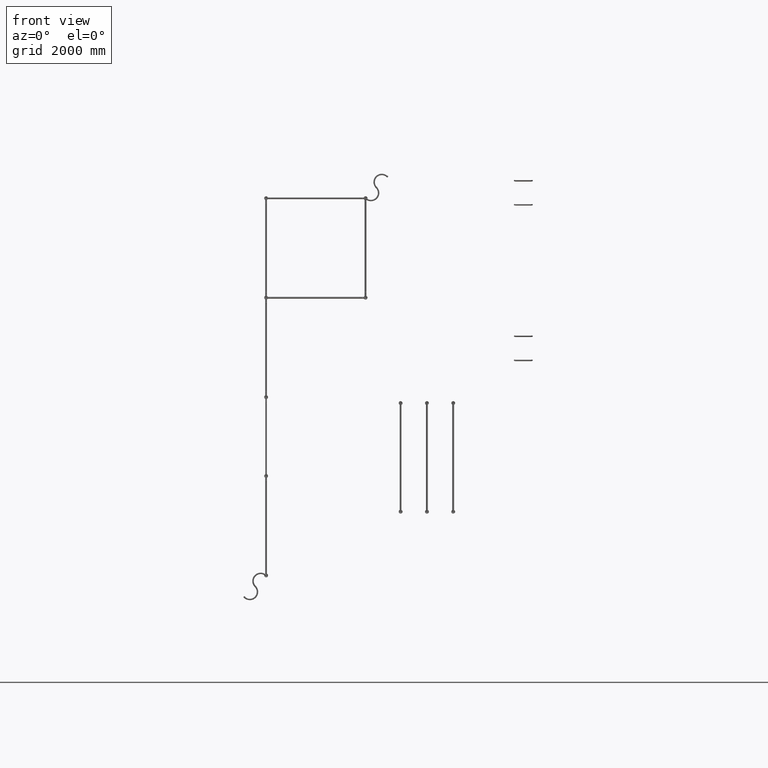
[diagram: clean part render]
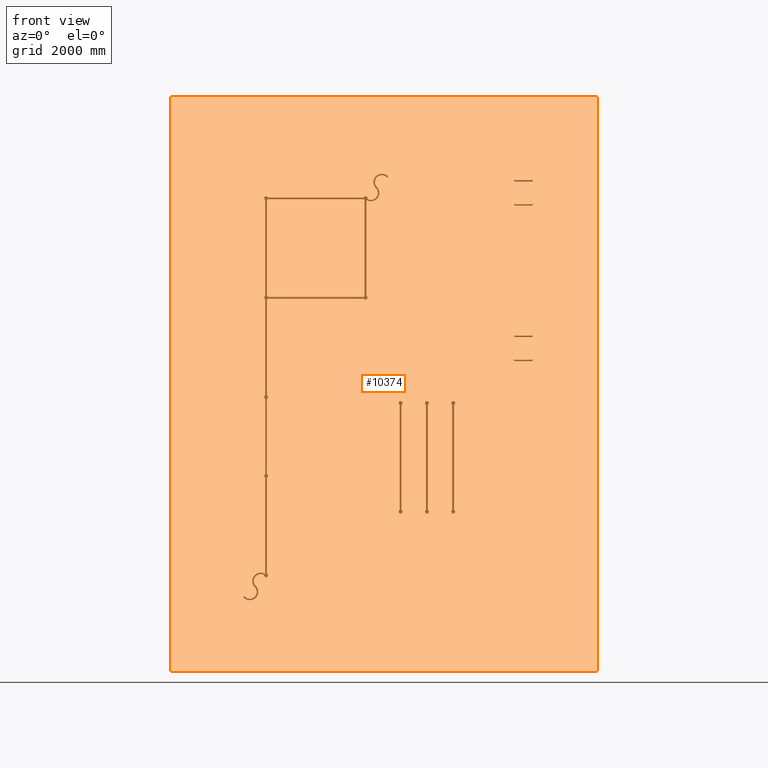
[diagram: same view with one face highlighted and labeled with its STEP entity id]
A machine part, front view. The second image highlights one B-rep face of the part: STEP entity #10374.
In plain terms, the highlighted planar face has unit normal (0, 1, 0).
Its self-contained STEP definition (entity closure, byte-faithful):
#222 = PLANE ( 'NONE',  #25080 ) ;
#1837 = VERTEX_POINT ( 'NONE', #22553 ) ;
#3449 = DIRECTION ( 'NONE',  ( 2.087887613674374975E-19, -0.000000000000000000, -1.000000000000000000 ) ) ;
#3881 = EDGE_LOOP ( 'NONE', ( #18244, #26310, #17058, #16167 ) ) ;
#4284 = VERTEX_POINT ( 'NONE', #31709 ) ;
#7839 = CARTESIAN_POINT ( 'NONE',  ( -9759.000000000000000, 0.000000000000000000, -13117.00000000000000 ) ) ;
#8075 = VECTOR ( 'NONE', #27178, 1000.000000000000000 ) ;
#9293 = VERTEX_POINT ( 'NONE', #7839 ) ;
#9484 = DIRECTION ( 'NONE',  ( 1.000000000000000000, 0.000000000000000000, 0.000000000000000000 ) ) ;
#9693 = CARTESIAN_POINT ( 'NONE',  ( -9759.000000000000000, 0.000000000000000000, -13117.00000000000000 ) ) ;
#10374 = ADVANCED_FACE ( 'NONE', ( #32349 ), #222, .T. ) ;
#11416 = CARTESIAN_POINT ( 'NONE',  ( -9759.000000000000000, 0.000000000000000000, -13117.00000000000000 ) ) ;
#11759 = EDGE_CURVE ( 'NONE', #29254, #1837, #40587, .T. ) ;
#12586 = LINE ( 'NONE', #31457, #29167 ) ;
#12803 = LINE ( 'NONE', #9693, #21213 ) ;
#13396 = CARTESIAN_POINT ( 'NONE',  ( -9759.000000000000000, 0.000000000000000000, -3.552713678800500929E-12 ) ) ;
#15300 = CARTESIAN_POINT ( 'NONE',  ( -9759.000000000000000, 0.000000000000000000, 0.000000000000000000 ) ) ;
#15798 = EDGE_CURVE ( 'NONE', #1837, #4284, #12586, .T. ) ;
#16167 = ORIENTED_EDGE ( 'NONE', *, *, #11759, .T. ) ;
#16527 = DIRECTION ( 'NONE',  ( -1.000000000000000000, -0.000000000000000000, 0.000000000000000000 ) ) ;
#17058 = ORIENTED_EDGE ( 'NONE', *, *, #27221, .T. ) ;
#17596 = DIRECTION ( 'NONE',  ( 0.000000000000000000, 1.000000000000000000, -0.000000000000000000 ) ) ;
#17818 = LINE ( 'NONE', #11416, #8075 ) ;
#18229 = EDGE_CURVE ( 'NONE', #4284, #9293, #12803, .T. ) ;
#18244 = ORIENTED_EDGE ( 'NONE', *, *, #15798, .T. ) ;
#21213 = VECTOR ( 'NONE', #16527, 1000.000000000000000 ) ;
#22553 = CARTESIAN_POINT ( 'NONE',  ( -3.552713678800500929E-12, 0.000000000000000000, 0.000000000000000000 ) ) ;
#23245 = CARTESIAN_POINT ( 'NONE',  ( 0.000000000000000000, 0.000000000000000000, 0.000000000000000000 ) ) ;
#25080 = AXIS2_PLACEMENT_3D ( 'NONE', #23245, #17596, #39787 ) ;
#26310 = ORIENTED_EDGE ( 'NONE', *, *, #18229, .T. ) ;
#27178 = DIRECTION ( 'NONE',  ( 0.000000000000000000, 0.000000000000000000, 1.000000000000000000 ) ) ;
#27221 = EDGE_CURVE ( 'NONE', #9293, #29254, #17818, .T. ) ;
#29167 = VECTOR ( 'NONE', #3449, 1000.000000000000000 ) ;
#29254 = VERTEX_POINT ( 'NONE', #13396 ) ;
#31457 = CARTESIAN_POINT ( 'NONE',  ( 2.738682182856677703E-15, 0.000000000000000000, -13117.00000000000000 ) ) ;
#31709 = CARTESIAN_POINT ( 'NONE',  ( 2.738682182856677703E-15, 0.000000000000000000, -13117.00000000000000 ) ) ;
#32349 = FACE_OUTER_BOUND ( 'NONE', #3881, .T. ) ;
#36387 = VECTOR ( 'NONE', #9484, 1000.000000000000000 ) ;
#39787 = DIRECTION ( 'NONE',  ( 0.000000000000000000, 0.000000000000000000, 1.000000000000000000 ) ) ;
#40587 = LINE ( 'NONE', #15300, #36387 ) ;